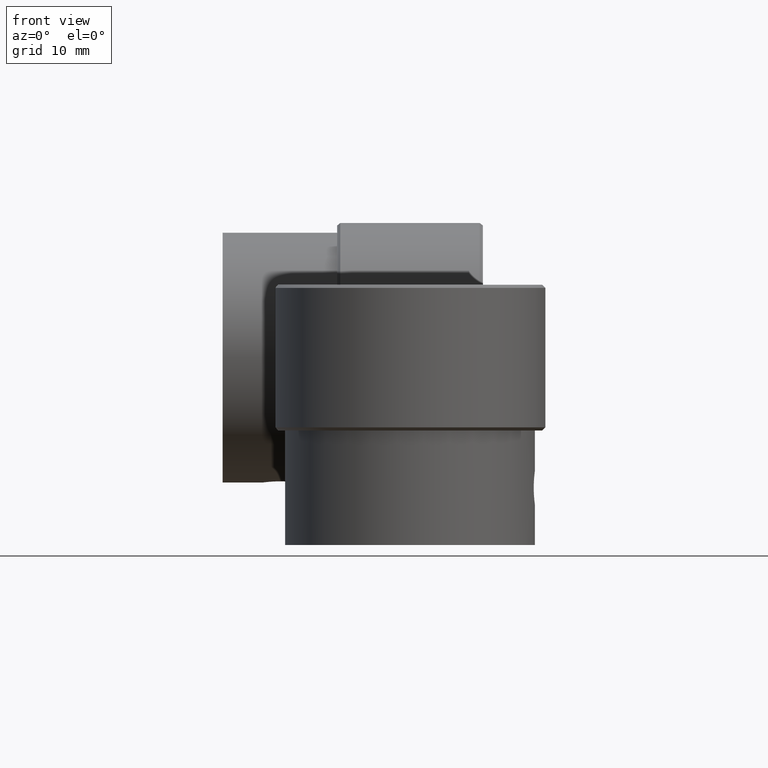
[diagram: clean part render]
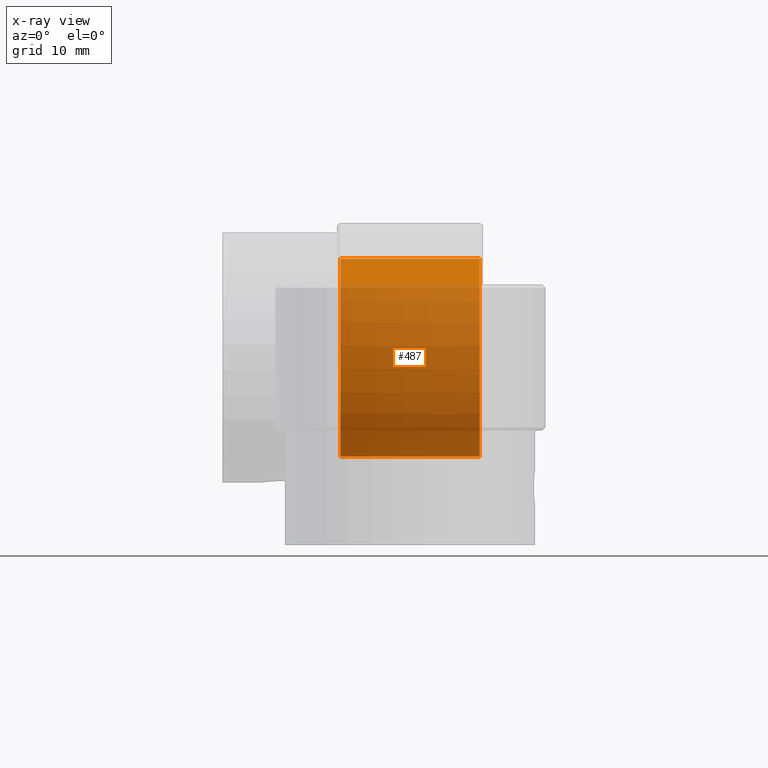
[diagram: x-ray — body ghosted, one internal face saturated and labeled with its STEP entity id]
A machine part, front view, then the same camera in x-ray: the body is ghosted and one INTERNAL B-rep face — a face not visible from any outside direction — is saturated and labeled: STEP entity #487.
In plain terms, the highlighted cylindrical surface (bore or boss wall) has radius 9.5 mm, axis along (-1, -0, -0).
Its self-contained STEP definition (entity closure, byte-faithful):
#487 = ADVANCED_FACE( '', ( #648, #649 ), #650, .F. );
#648 = FACE_OUTER_BOUND( '', #874, .T. );
#649 = FACE_OUTER_BOUND( '', #875, .T. );
#650 = CYLINDRICAL_SURFACE( '', #876, 9.50000000000000 );
#874 = EDGE_LOOP( '', ( #1164 ) );
#875 = EDGE_LOOP( '', ( #1165 ) );
#876 = AXIS2_PLACEMENT_3D( '', #1166, #1167, #1168 );
#1164 = ORIENTED_EDGE( '', *, *, #1535, .T. );
#1165 = ORIENTED_EDGE( '', *, *, #1536, .T. );
#1166 = CARTESIAN_POINT( '', ( -7.00000000000000, 29.0000000000000, -7.00000000000000 ) );
#1167 = DIRECTION( '', ( -1.00000000000000, -0.000000000000000, -6.12323399573677E-017 ) );
#1168 = DIRECTION( '', ( 6.12323399573677E-017, 0.000000000000000, -1.00000000000000 ) );
#1535 = EDGE_CURVE( '', #1702, #1702, #1703, .T. );
#1536 = EDGE_CURVE( '', #1704, #1704, #1705, .F. );
#1702 = VERTEX_POINT( '', #2354 );
#1703 = CIRCLE( '', #2355, 9.50000000000000 );
#1704 = VERTEX_POINT( '', #2356 );
#1705 = CIRCLE( '', #2357, 9.50000000000000 );
#2354 = CARTESIAN_POINT( '', ( 6.70000000000000, 29.0000000000000, -16.5000000000000 ) );
#2355 = AXIS2_PLACEMENT_3D( '', #2763, #2764, #2765 );
#2356 = CARTESIAN_POINT( '', ( -6.70000000000000, 29.0000000000000, -16.5000000000000 ) );
#2357 = AXIS2_PLACEMENT_3D( '', #2766, #2767, #2768 );
#2763 = CARTESIAN_POINT( '', ( 6.70000000000000, 29.0000000000000, -7.00000000000000 ) );
#2764 = DIRECTION( '', ( 1.00000000000000, 0.000000000000000, 6.12323399573677E-017 ) );
#2765 = DIRECTION( '', ( 6.12323399573677E-017, 0.000000000000000, -1.00000000000000 ) );
#2766 = CARTESIAN_POINT( '', ( -6.70000000000000, 29.0000000000000, -7.00000000000000 ) );
#2767 = DIRECTION( '', ( 1.00000000000000, 0.000000000000000, 6.12323399573677E-017 ) );
#2768 = DIRECTION( '', ( 6.12323399573677E-017, 0.000000000000000, -1.00000000000000 ) );